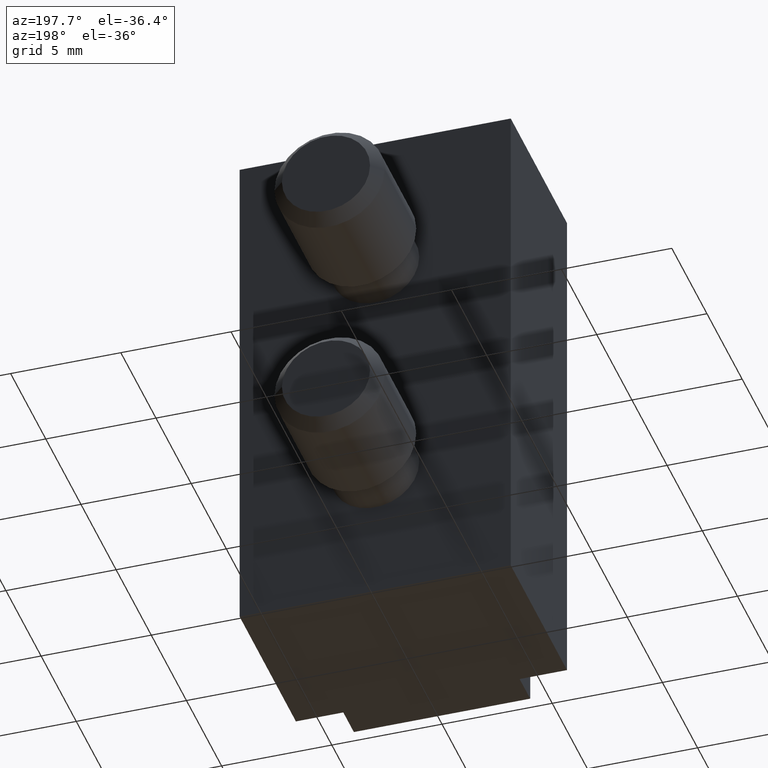
[diagram: clean part render]
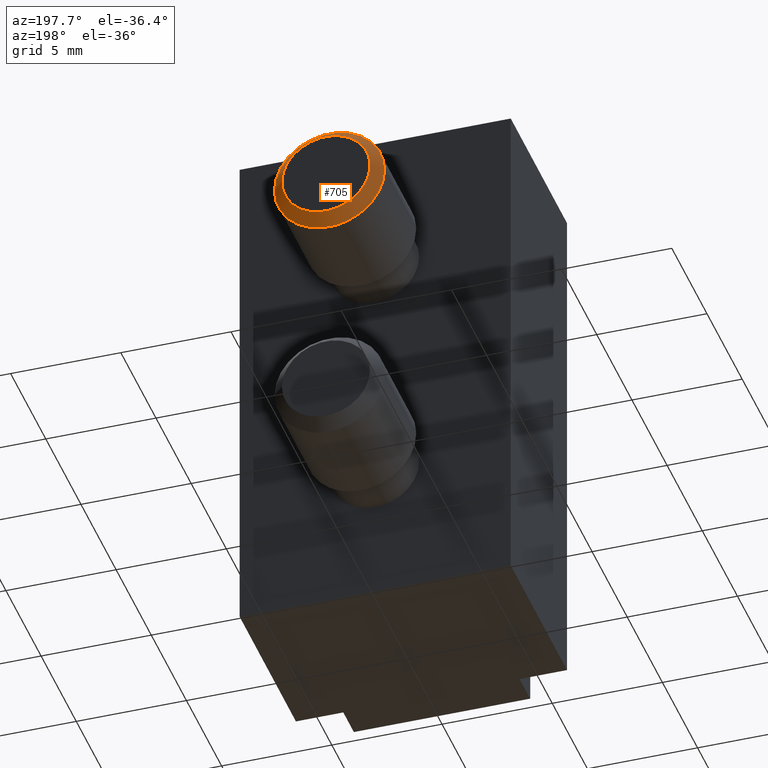
[diagram: same view with one face highlighted and labeled with its STEP entity id]
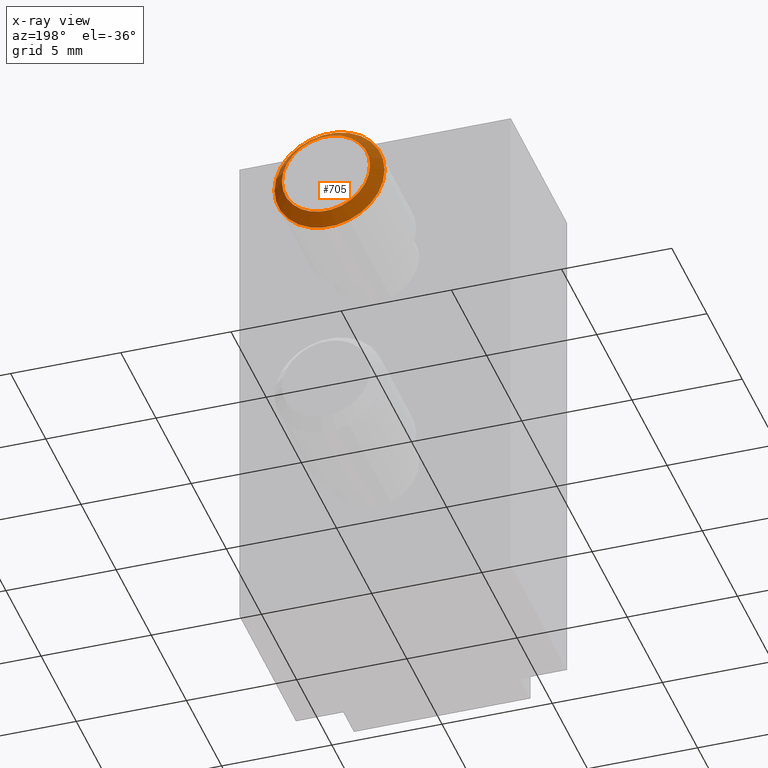
[diagram: x-ray of the same camera — body ghosted, the highlighted face saturated]
A machine part, auxiliary view. The second image highlights one B-rep face of the part: STEP entity #705.
The next image is the same camera in x-ray: the body ghosted, the highlighted face saturated — about 0% of this face is hidden behind the body in this view.
In plain terms, the highlighted conical surface has half-angle 45 deg.
Its self-contained STEP definition (entity closure, byte-faithful):
#26=CONICAL_SURFACE('',#853,2.25,0.785398163397448);
#109=FACE_OUTER_BOUND('',#161,.T.);
#161=EDGE_LOOP('',(#637,#638,#639,#640));
#223=LINE('',#1478,#268);
#268=VECTOR('',#1056,2.25);
#303=CIRCLE('',#854,2.);
#304=CIRCLE('',#855,2.5);
#368=VERTEX_POINT('',#1475);
#369=VERTEX_POINT('',#1477);
#459=EDGE_CURVE('',#368,#368,#303,.T.);
#460=EDGE_CURVE('',#368,#369,#223,.T.);
#461=EDGE_CURVE('',#369,#369,#304,.T.);
#637=ORIENTED_EDGE('',*,*,#459,.T.);
#638=ORIENTED_EDGE('',*,*,#460,.T.);
#639=ORIENTED_EDGE('',*,*,#461,.T.);
#640=ORIENTED_EDGE('',*,*,#460,.F.);
#705=ADVANCED_FACE('',(#109),#26,.T.);
#853=AXIS2_PLACEMENT_3D('',#1474,#1052,#1053);
#854=AXIS2_PLACEMENT_3D('',#1476,#1054,#1055);
#855=AXIS2_PLACEMENT_3D('',#1479,#1057,#1058);
#1052=DIRECTION('center_axis',(0.,0.,-1.));
#1053=DIRECTION('ref_axis',(-1.,0.,0.));
#1054=DIRECTION('center_axis',(0.,0.,-1.));
#1055=DIRECTION('ref_axis',(-1.,0.,0.));
#1056=DIRECTION('',(0.707106781186547,8.65956056235493E-17,-0.707106781186548));
#1057=DIRECTION('center_axis',(0.,0.,1.));
#1058=DIRECTION('ref_axis',(-1.,0.,0.));
#1474=CARTESIAN_POINT('Origin',(0.,0.,14.65));
#1475=CARTESIAN_POINT('',(2.,-2.44921270764475E-16,14.9));
#1476=CARTESIAN_POINT('Origin',(0.,0.,14.9));
#1477=CARTESIAN_POINT('',(2.5,3.06151588455594E-16,14.4));
#1478=CARTESIAN_POINT('',(2.25,2.75545529808154E-16,14.65));
#1479=CARTESIAN_POINT('Origin',(0.,0.,14.4));